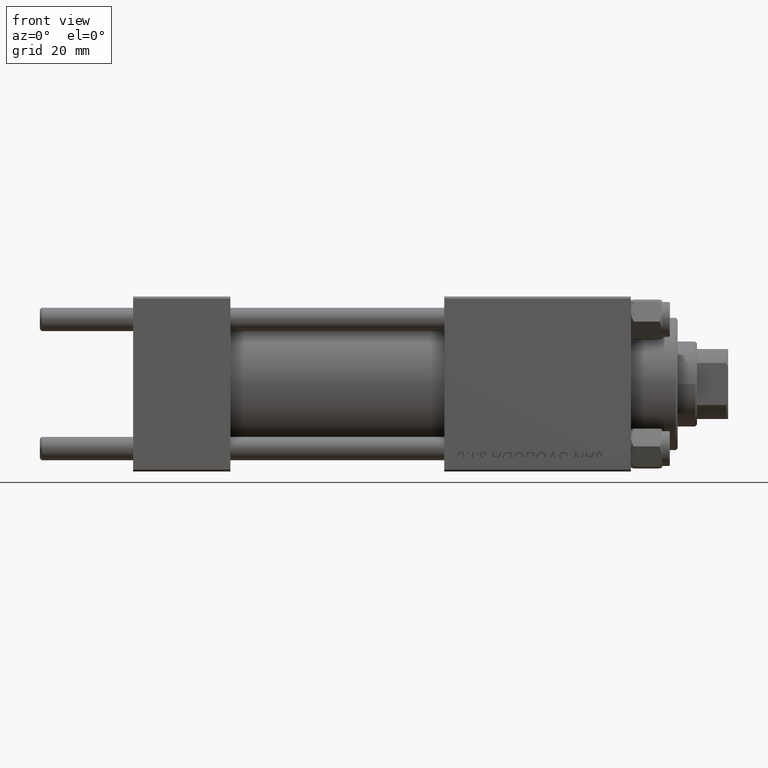
[diagram: clean part render]
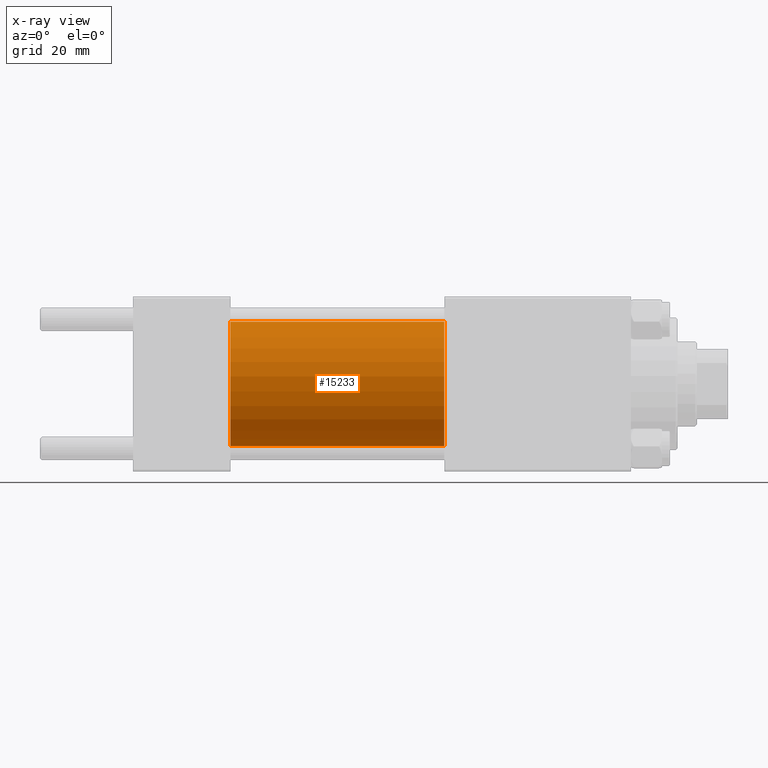
[diagram: x-ray — body ghosted, one internal face saturated and labeled with its STEP entity id]
A machine part, front view, then the same camera in x-ray: the body is ghosted and one INTERNAL B-rep face — a face not visible from any outside direction — is saturated and labeled: STEP entity #15233.
In plain terms, the highlighted cylindrical surface (partial cylindrical patch) has radius 16 mm, axis along (-1, -0, -0).
Its self-contained STEP definition (entity closure, byte-faithful):
#1263 = LINE ( 'NONE', #1510, #44704 ) ;
#1510 = CARTESIAN_POINT ( 'NONE',  ( 80.00000000000000000, 0.000000000000000000, 16.00000000000000000 ) ) ;
#2527 = AXIS2_PLACEMENT_3D ( 'NONE', #7703, #49472, #45664 ) ;
#4230 = CARTESIAN_POINT ( 'NONE',  ( 80.00000000000000000, 0.000000000000000000, 16.00000000000000000 ) ) ;
#4579 = VECTOR ( 'NONE', #44814, 1000.000000000000000 ) ;
#5069 = EDGE_CURVE ( 'NONE', #31564, #25855, #13935, .T. ) ;
#7703 = CARTESIAN_POINT ( 'NONE',  ( 80.00000000000000000, 0.000000000000000000, 0.000000000000000000 ) ) ;
#9526 = DIRECTION ( 'NONE',  ( 0.000000000000000000, 0.000000000000000000, 1.000000000000000000 ) ) ;
#10247 = CIRCLE ( 'NONE', #43370, 16.00000000000000000 ) ;
#11841 = CARTESIAN_POINT ( 'NONE',  ( 25.00000000000000000, 0.000000000000000000, 0.000000000000000000 ) ) ;
#13935 = LINE ( 'NONE', #44566, #4579 ) ;
#15233 = ADVANCED_FACE ( 'NONE', ( #41140 ), #28505, .F. ) ;
#21227 = CARTESIAN_POINT ( 'NONE',  ( 25.00000000000000000, 1.959434878635765131E-15, -16.00000000000000000 ) ) ;
#21532 = VERTEX_POINT ( 'NONE', #27088 ) ;
#23214 = ORIENTED_EDGE ( 'NONE', *, *, #5069, .T. ) ;
#23886 = EDGE_CURVE ( 'NONE', #21532, #25855, #10247, .T. ) ;
#25855 = VERTEX_POINT ( 'NONE', #21227 ) ;
#27088 = CARTESIAN_POINT ( 'NONE',  ( 25.00000000000000000, 0.000000000000000000, 16.00000000000000000 ) ) ;
#27247 = CARTESIAN_POINT ( 'NONE',  ( 80.00000000000000000, 1.959434878635765131E-15, -16.00000000000000000 ) ) ;
#27275 = DIRECTION ( 'NONE',  ( 0.000000000000000000, 0.000000000000000000, -1.000000000000000000 ) ) ;
#28505 = CYLINDRICAL_SURFACE ( 'NONE', #41944, 16.00000000000000000 ) ;
#29889 = CIRCLE ( 'NONE', #2527, 16.00000000000000000 ) ;
#30556 = ORIENTED_EDGE ( 'NONE', *, *, #23886, .F. ) ;
#31564 = VERTEX_POINT ( 'NONE', #27247 ) ;
#34786 = ORIENTED_EDGE ( 'NONE', *, *, #43678, .F. ) ;
#35316 = EDGE_CURVE ( 'NONE', #47189, #31564, #29889, .T. ) ;
#35407 = DIRECTION ( 'NONE',  ( -1.000000000000000000, -0.000000000000000000, -0.000000000000000000 ) ) ;
#41140 = FACE_OUTER_BOUND ( 'NONE', #48046, .T. ) ;
#41944 = AXIS2_PLACEMENT_3D ( 'NONE', #48243, #44205, #9526 ) ;
#41971 = ORIENTED_EDGE ( 'NONE', *, *, #35316, .T. ) ;
#43370 = AXIS2_PLACEMENT_3D ( 'NONE', #11841, #47007, #27275 ) ;
#43678 = EDGE_CURVE ( 'NONE', #47189, #21532, #1263, .T. ) ;
#44205 = DIRECTION ( 'NONE',  ( -1.000000000000000000, -0.000000000000000000, -0.000000000000000000 ) ) ;
#44566 = CARTESIAN_POINT ( 'NONE',  ( 80.00000000000000000, 1.959434878635765131E-15, -16.00000000000000000 ) ) ;
#44704 = VECTOR ( 'NONE', #35407, 1000.000000000000000 ) ;
#44814 = DIRECTION ( 'NONE',  ( -1.000000000000000000, -0.000000000000000000, -0.000000000000000000 ) ) ;
#45664 = DIRECTION ( 'NONE',  ( 0.000000000000000000, 0.000000000000000000, -1.000000000000000000 ) ) ;
#47007 = DIRECTION ( 'NONE',  ( 1.000000000000000000, 0.000000000000000000, 0.000000000000000000 ) ) ;
#47189 = VERTEX_POINT ( 'NONE', #4230 ) ;
#48046 = EDGE_LOOP ( 'NONE', ( #41971, #23214, #30556, #34786 ) ) ;
#48243 = CARTESIAN_POINT ( 'NONE',  ( 80.00000000000000000, 0.000000000000000000, 0.000000000000000000 ) ) ;
#49472 = DIRECTION ( 'NONE',  ( 1.000000000000000000, 0.000000000000000000, 0.000000000000000000 ) ) ;